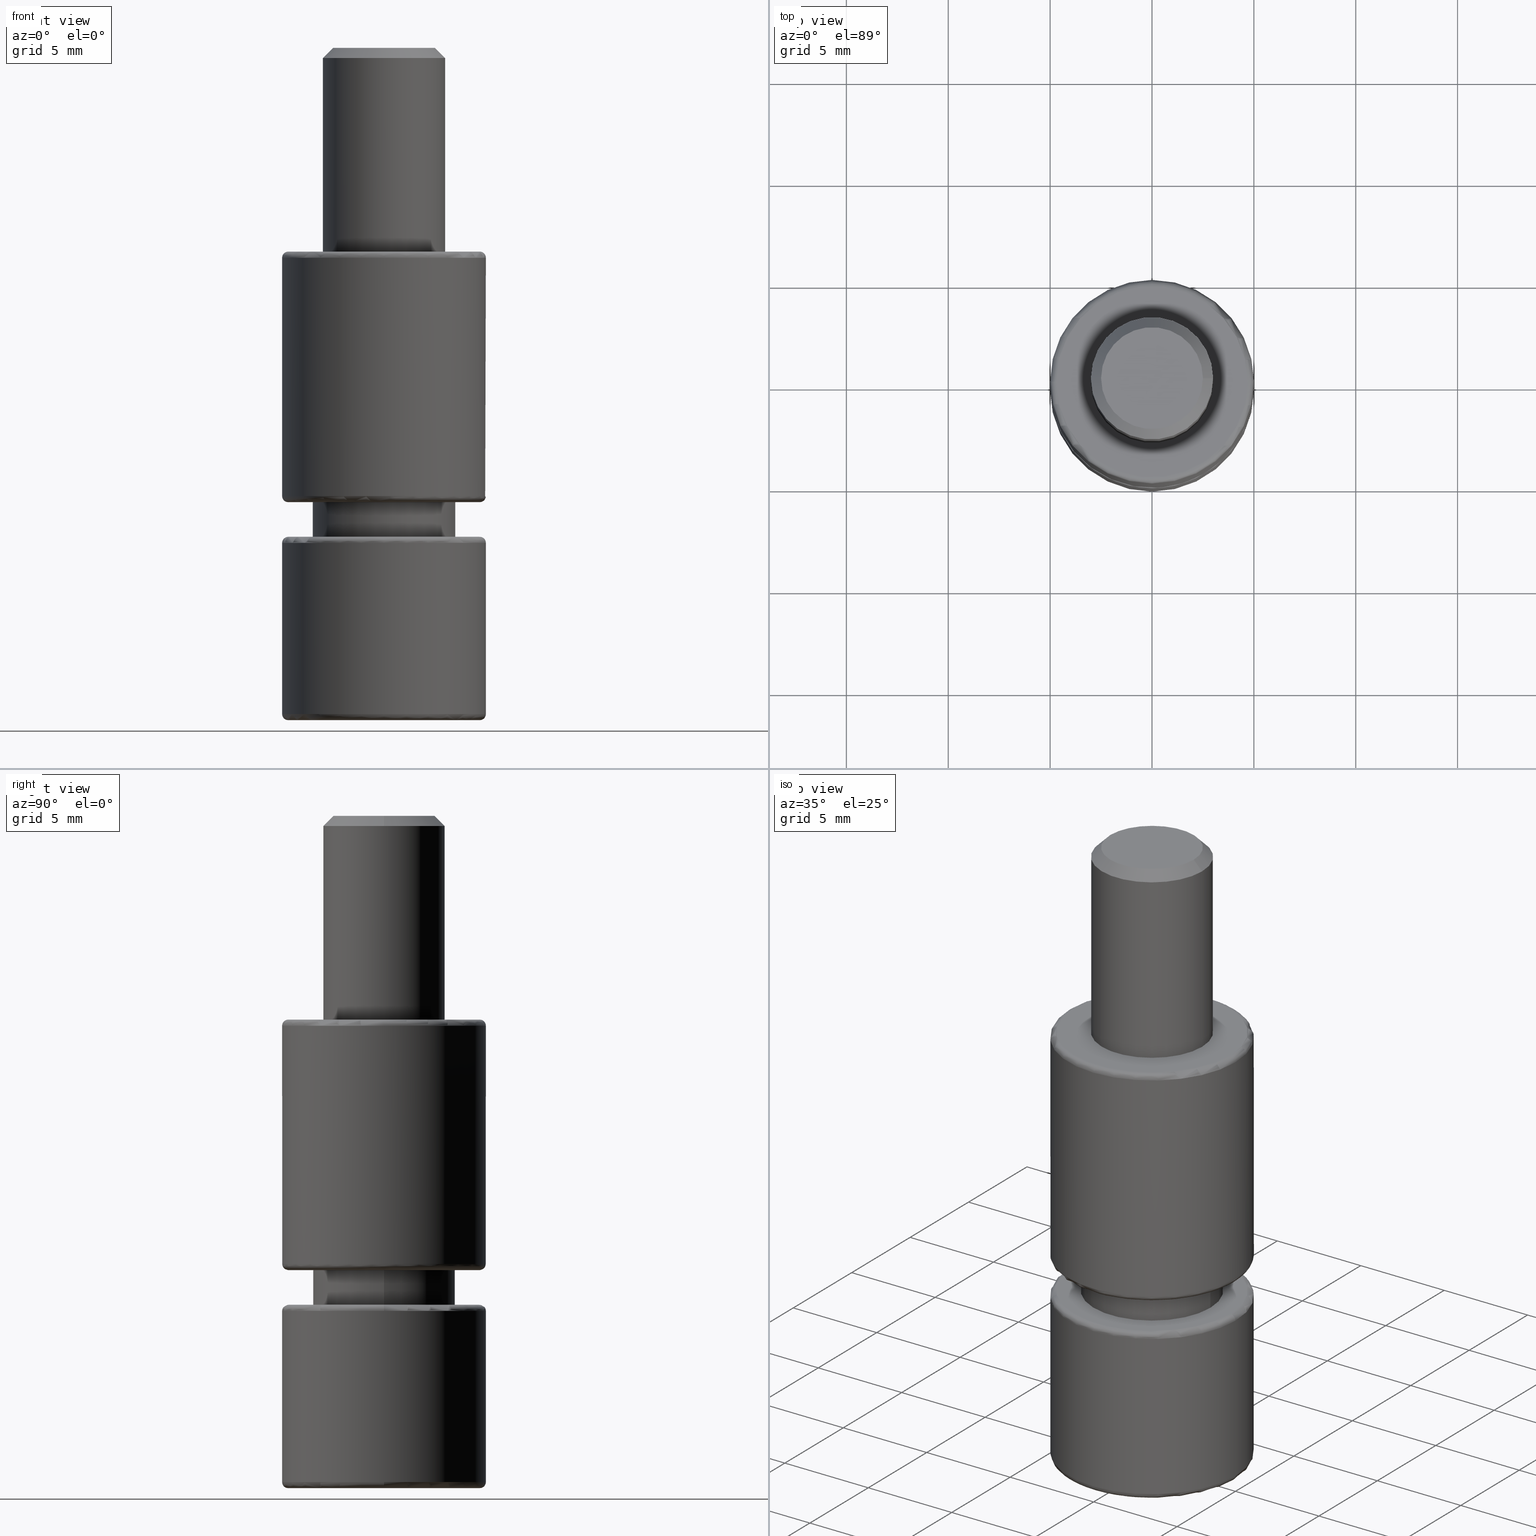
[diagram: canonical four-view strip — front | top / right | iso, engineering-drawing reading convention]
A machine part, canonical four-view strip (front | top / right | iso — engineering-drawing reading convention). The complete STEP part file that produces these views, byte-faithful:
ISO-10303-21;
HEADER;
/* Generated by software containing ST-Developer
 * from STEP Tools, Inc. (www.steptools.com) 
 */

FILE_DESCRIPTION(
/* description */ ('PERNO FILETTATO M6x10 TESTA H23 FERRO ZN'),
/* implementation_level */ '2;1');

FILE_NAME(
/* name */ 
'Q:\\Catalogo\\3_Profili e accessori MACAP\\Per Download Web e catalog
o artaceo\\ACCESSORI\\PAGINA 56\\DPEXX0000063-XT10204.stp',
/* time_stamp */ '2019-07-29T10:38:09+02:00',
/* author */ ('fzagni'),
/* organization */ (''),
/* preprocessor_version */ 'ST-DEVELOPER v17.2',
/* originating_system */ 'Autodesk Inventor 2019',
/* authorisation */ '');

FILE_SCHEMA (('AUTOMOTIVE_DESIGN { 1 0 10303 214 3 1 1 }'));
ENDSEC;

DATA;
#10=MECHANICAL_DESIGN_GEOMETRIC_PRESENTATION_REPRESENTATION('',(#13),#804);
#11=SHAPE_REPRESENTATION_RELATIONSHIP('SRR','None',#811,#12);
#12=ADVANCED_BREP_SHAPE_REPRESENTATION('',(#14),#803);
#13=STYLED_ITEM('',(#820),#14);
#14=MANIFOLD_SOLID_BREP('Solido1',#444);
#15=CONICAL_SURFACE('',#517,2.75,0.78539816339745);
#16=TOROIDAL_SURFACE('',#481,4.7,0.3);
#17=TOROIDAL_SURFACE('',#493,4.7,0.3);
#18=TOROIDAL_SURFACE('',#508,4.7,0.3);
#19=TOROIDAL_SURFACE('',#510,4.7,0.3);
#20=FACE_BOUND('',#99,.T.);
#21=FACE_BOUND('',#102,.T.);
#22=FACE_BOUND('',#106,.T.);
#23=FACE_BOUND('',#116,.T.);
#24=CIRCLE('',#480,4.7);
#25=CIRCLE('',#482,5.);
#26=CIRCLE('',#483,0.3);
#27=CIRCLE('',#484,4.7);
#28=CIRCLE('',#485,4.7);
#29=CIRCLE('',#486,5.);
#30=CIRCLE('',#488,3.5);
#31=CIRCLE('',#489,3.5);
#32=CIRCLE('',#491,5.);
#33=CIRCLE('',#492,5.);
#34=CIRCLE('',#494,5.);
#35=CIRCLE('',#495,0.3);
#36=CIRCLE('',#496,4.7);
#37=CIRCLE('',#498,3.5);
#38=CIRCLE('',#499,3.5);
#39=CIRCLE('',#501,5.);
#40=CIRCLE('',#502,5.);
#41=CIRCLE('',#509,0.3);
#42=CIRCLE('',#511,4.7);
#43=CIRCLE('',#512,0.3);
#44=CIRCLE('',#513,4.7);
#45=CIRCLE('',#515,3.);
#46=CIRCLE('',#516,3.);
#47=CIRCLE('',#518,2.5);
#48=CIRCLE('',#519,3.);
#49=CIRCLE('',#520,3.);
#50=PLANE('',#476);
#51=PLANE('',#477);
#52=PLANE('',#478);
#53=PLANE('',#479);
#54=PLANE('',#487);
#55=PLANE('',#497);
#56=PLANE('',#504);
#57=PLANE('',#505);
#58=PLANE('',#506);
#59=PLANE('',#507);
#60=PLANE('',#514);
#61=PLANE('',#522);
#62=FACE_OUTER_BOUND('',#89,.T.);
#63=FACE_OUTER_BOUND('',#90,.T.);
#64=FACE_OUTER_BOUND('',#91,.T.);
#65=FACE_OUTER_BOUND('',#92,.T.);
#66=FACE_OUTER_BOUND('',#93,.T.);
#67=FACE_OUTER_BOUND('',#94,.T.);
#68=FACE_OUTER_BOUND('',#95,.T.);
#69=FACE_OUTER_BOUND('',#96,.T.);
#70=FACE_OUTER_BOUND('',#97,.T.);
#71=FACE_OUTER_BOUND('',#98,.T.);
#72=FACE_OUTER_BOUND('',#100,.T.);
#73=FACE_OUTER_BOUND('',#101,.T.);
#74=FACE_OUTER_BOUND('',#103,.T.);
#75=FACE_OUTER_BOUND('',#104,.T.);
#76=FACE_OUTER_BOUND('',#105,.T.);
#77=FACE_OUTER_BOUND('',#107,.T.);
#78=FACE_OUTER_BOUND('',#108,.T.);
#79=FACE_OUTER_BOUND('',#109,.T.);
#80=FACE_OUTER_BOUND('',#110,.T.);
#81=FACE_OUTER_BOUND('',#111,.T.);
#82=FACE_OUTER_BOUND('',#112,.T.);
#83=FACE_OUTER_BOUND('',#113,.T.);
#84=FACE_OUTER_BOUND('',#114,.T.);
#85=FACE_OUTER_BOUND('',#115,.T.);
#86=FACE_OUTER_BOUND('',#117,.T.);
#87=FACE_OUTER_BOUND('',#118,.T.);
#88=FACE_OUTER_BOUND('',#119,.T.);
#89=EDGE_LOOP('',(#285,#286,#287,#288));
#90=EDGE_LOOP('',(#289,#290,#291,#292));
#91=EDGE_LOOP('',(#293,#294,#295,#296));
#92=EDGE_LOOP('',(#297,#298,#299,#300));
#93=EDGE_LOOP('',(#301,#302,#303,#304));
#94=EDGE_LOOP('',(#305,#306,#307,#308));
#95=EDGE_LOOP('',(#309,#310,#311,#312));
#96=EDGE_LOOP('',(#313,#314,#315,#316));
#97=EDGE_LOOP('',(#317,#318,#319,#320));
#98=EDGE_LOOP('',(#321));
#99=EDGE_LOOP('',(#322,#323,#324,#325,#326,#327));
#100=EDGE_LOOP('',(#328,#329,#330,#331,#332,#333));
#101=EDGE_LOOP('',(#334,#335));
#102=EDGE_LOOP('',(#336,#337));
#103=EDGE_LOOP('',(#338,#339,#340,#341,#342,#343));
#104=EDGE_LOOP('',(#344,#345,#346,#347));
#105=EDGE_LOOP('',(#348));
#106=EDGE_LOOP('',(#349,#350));
#107=EDGE_LOOP('',(#351,#352,#353,#354,#355));
#108=EDGE_LOOP('',(#356,#357,#358,#359,#360,#361));
#109=EDGE_LOOP('',(#362,#363,#364,#365));
#110=EDGE_LOOP('',(#366,#367,#368,#369));
#111=EDGE_LOOP('',(#370,#371,#372,#373));
#112=EDGE_LOOP('',(#374,#375,#376,#377,#378,#379));
#113=EDGE_LOOP('',(#380,#381,#382,#383,#384));
#114=EDGE_LOOP('',(#385,#386,#387,#388,#389,#390));
#115=EDGE_LOOP('',(#391,#392));
#116=EDGE_LOOP('',(#393,#394));
#117=EDGE_LOOP('',(#395,#396,#397,#398,#399));
#118=EDGE_LOOP('',(#400,#401,#402,#403,#404,#405));
#119=EDGE_LOOP('',(#406));
#120=ELLIPSE('',#465,0.346410161513776,0.3);
#121=ELLIPSE('',#466,0.346410161513775,0.3);
#122=ELLIPSE('',#468,0.346410161513775,0.3);
#123=ELLIPSE('',#470,0.346410161513776,0.3);
#124=ELLIPSE('',#472,0.346410161513775,0.3);
#125=ELLIPSE('',#474,0.346410161513776,0.3);
#126=LINE('',#676,#155);
#127=LINE('',#680,#156);
#128=LINE('',#684,#157);
#129=LINE('',#687,#158);
#130=LINE('',#690,#159);
#131=LINE('',#693,#160);
#132=LINE('',#696,#161);
#133=LINE('',#699,#162);
#134=LINE('',#702,#163);
#135=LINE('',#705,#164);
#136=LINE('',#707,#165);
#137=LINE('',#708,#166);
#138=LINE('',#711,#167);
#139=LINE('',#713,#168);
#140=LINE('',#714,#169);
#141=LINE('',#717,#170);
#142=LINE('',#718,#171);
#143=LINE('',#721,#172);
#144=LINE('',#722,#173);
#145=LINE('',#743,#174);
#146=LINE('',#763,#175);
#147=LINE('',#765,#176);
#148=LINE('',#768,#177);
#149=LINE('',#769,#178);
#150=LINE('',#772,#179);
#151=LINE('',#773,#180);
#152=LINE('',#775,#181);
#153=LINE('',#794,#182);
#154=LINE('',#799,#183);
#155=VECTOR('',#527,10.);
#156=VECTOR('',#530,10.);
#157=VECTOR('',#535,10.);
#158=VECTOR('',#538,10.);
#159=VECTOR('',#541,10.);
#160=VECTOR('',#544,10.);
#161=VECTOR('',#547,10.);
#162=VECTOR('',#550,10.);
#163=VECTOR('',#553,10.);
#164=VECTOR('',#556,10.);
#165=VECTOR('',#559,10.);
#166=VECTOR('',#560,10.);
#167=VECTOR('',#563,10.);
#168=VECTOR('',#564,10.);
#169=VECTOR('',#565,10.);
#170=VECTOR('',#568,10.);
#171=VECTOR('',#569,10.);
#172=VECTOR('',#572,10.);
#173=VECTOR('',#573,10.);
#174=VECTOR('',#598,5.);
#175=VECTOR('',#623,5.);
#176=VECTOR('',#626,3.5);
#177=VECTOR('',#629,10.);
#178=VECTOR('',#630,10.);
#179=VECTOR('',#633,10.);
#180=VECTOR('',#634,10.);
#181=VECTOR('',#637,10.);
#182=VECTOR('',#662,2.75);
#183=VECTOR('',#669,3.);
#184=VERTEX_POINT('',#674);
#185=VERTEX_POINT('',#675);
#186=VERTEX_POINT('',#677);
#187=VERTEX_POINT('',#679);
#188=VERTEX_POINT('',#683);
#189=VERTEX_POINT('',#685);
#190=VERTEX_POINT('',#689);
#191=VERTEX_POINT('',#691);
#192=VERTEX_POINT('',#695);
#193=VERTEX_POINT('',#697);
#194=VERTEX_POINT('',#701);
#195=VERTEX_POINT('',#703);
#196=VERTEX_POINT('',#710);
#197=VERTEX_POINT('',#712);
#198=VERTEX_POINT('',#716);
#199=VERTEX_POINT('',#720);
#200=VERTEX_POINT('',#724);
#201=VERTEX_POINT('',#727);
#202=VERTEX_POINT('',#728);
#203=VERTEX_POINT('',#730);
#204=VERTEX_POINT('',#732);
#205=VERTEX_POINT('',#737);
#206=VERTEX_POINT('',#738);
#207=VERTEX_POINT('',#742);
#208=VERTEX_POINT('',#744);
#209=VERTEX_POINT('',#748);
#210=VERTEX_POINT('',#750);
#211=VERTEX_POINT('',#754);
#212=VERTEX_POINT('',#755);
#213=VERTEX_POINT('',#759);
#214=VERTEX_POINT('',#760);
#215=VERTEX_POINT('',#767);
#216=VERTEX_POINT('',#771);
#217=VERTEX_POINT('',#780);
#218=VERTEX_POINT('',#781);
#219=VERTEX_POINT('',#786);
#220=VERTEX_POINT('',#787);
#221=VERTEX_POINT('',#791);
#222=VERTEX_POINT('',#793);
#223=VERTEX_POINT('',#795);
#224=EDGE_CURVE('',#184,#185,#126,.T.);
#225=EDGE_CURVE('',#185,#186,#120,.T.);
#226=EDGE_CURVE('',#186,#187,#127,.T.);
#227=EDGE_CURVE('',#184,#187,#121,.T.);
#228=EDGE_CURVE('',#185,#188,#128,.T.);
#229=EDGE_CURVE('',#188,#189,#122,.T.);
#230=EDGE_CURVE('',#189,#186,#129,.T.);
#231=EDGE_CURVE('',#187,#190,#130,.T.);
#232=EDGE_CURVE('',#190,#191,#123,.T.);
#233=EDGE_CURVE('',#191,#184,#131,.T.);
#234=EDGE_CURVE('',#188,#192,#132,.T.);
#235=EDGE_CURVE('',#192,#193,#124,.T.);
#236=EDGE_CURVE('',#193,#189,#133,.T.);
#237=EDGE_CURVE('',#192,#194,#134,.T.);
#238=EDGE_CURVE('',#194,#195,#125,.T.);
#239=EDGE_CURVE('',#195,#193,#135,.T.);
#240=EDGE_CURVE('',#190,#195,#136,.T.);
#241=EDGE_CURVE('',#194,#191,#137,.T.);
#242=EDGE_CURVE('',#190,#196,#138,.T.);
#243=EDGE_CURVE('',#196,#197,#139,.T.);
#244=EDGE_CURVE('',#195,#197,#140,.T.);
#245=EDGE_CURVE('',#187,#198,#141,.T.);
#246=EDGE_CURVE('',#198,#196,#142,.T.);
#247=EDGE_CURVE('',#186,#199,#143,.T.);
#248=EDGE_CURVE('',#199,#198,#144,.T.);
#249=EDGE_CURVE('',#200,#200,#24,.T.);
#250=EDGE_CURVE('',#201,#202,#25,.T.);
#251=EDGE_CURVE('',#202,#203,#26,.T.);
#252=EDGE_CURVE('',#203,#204,#27,.T.);
#253=EDGE_CURVE('',#204,#203,#28,.T.);
#254=EDGE_CURVE('',#202,#201,#29,.T.);
#255=EDGE_CURVE('',#205,#206,#30,.T.);
#256=EDGE_CURVE('',#206,#205,#31,.T.);
#257=EDGE_CURVE('',#201,#207,#145,.T.);
#258=EDGE_CURVE('',#208,#207,#32,.T.);
#259=EDGE_CURVE('',#207,#208,#33,.T.);
#260=EDGE_CURVE('',#209,#209,#34,.T.);
#261=EDGE_CURVE('',#209,#210,#35,.T.);
#262=EDGE_CURVE('',#210,#210,#36,.T.);
#263=EDGE_CURVE('',#211,#212,#37,.T.);
#264=EDGE_CURVE('',#212,#211,#38,.T.);
#265=EDGE_CURVE('',#213,#214,#39,.T.);
#266=EDGE_CURVE('',#214,#213,#40,.T.);
#267=EDGE_CURVE('',#214,#209,#146,.T.);
#268=EDGE_CURVE('',#206,#212,#147,.T.);
#269=EDGE_CURVE('',#189,#215,#148,.T.);
#270=EDGE_CURVE('',#215,#199,#149,.T.);
#271=EDGE_CURVE('',#193,#216,#150,.T.);
#272=EDGE_CURVE('',#216,#215,#151,.T.);
#273=EDGE_CURVE('',#197,#216,#152,.T.);
#274=EDGE_CURVE('',#200,#208,#41,.T.);
#275=EDGE_CURVE('',#217,#218,#42,.T.);
#276=EDGE_CURVE('',#218,#214,#43,.T.);
#277=EDGE_CURVE('',#218,#217,#44,.T.);
#278=EDGE_CURVE('',#219,#220,#45,.T.);
#279=EDGE_CURVE('',#220,#219,#46,.T.);
#280=EDGE_CURVE('',#221,#221,#47,.T.);
#281=EDGE_CURVE('',#221,#222,#153,.T.);
#282=EDGE_CURVE('',#222,#223,#48,.T.);
#283=EDGE_CURVE('',#223,#222,#49,.T.);
#284=EDGE_CURVE('',#223,#220,#154,.T.);
#285=ORIENTED_EDGE('',*,*,#224,.T.);
#286=ORIENTED_EDGE('',*,*,#225,.T.);
#287=ORIENTED_EDGE('',*,*,#226,.T.);
#288=ORIENTED_EDGE('',*,*,#227,.F.);
#289=ORIENTED_EDGE('',*,*,#228,.T.);
#290=ORIENTED_EDGE('',*,*,#229,.T.);
#291=ORIENTED_EDGE('',*,*,#230,.T.);
#292=ORIENTED_EDGE('',*,*,#225,.F.);
#293=ORIENTED_EDGE('',*,*,#231,.T.);
#294=ORIENTED_EDGE('',*,*,#232,.T.);
#295=ORIENTED_EDGE('',*,*,#233,.T.);
#296=ORIENTED_EDGE('',*,*,#227,.T.);
#297=ORIENTED_EDGE('',*,*,#234,.T.);
#298=ORIENTED_EDGE('',*,*,#235,.T.);
#299=ORIENTED_EDGE('',*,*,#236,.T.);
#300=ORIENTED_EDGE('',*,*,#229,.F.);
#301=ORIENTED_EDGE('',*,*,#237,.T.);
#302=ORIENTED_EDGE('',*,*,#238,.T.);
#303=ORIENTED_EDGE('',*,*,#239,.T.);
#304=ORIENTED_EDGE('',*,*,#235,.F.);
#305=ORIENTED_EDGE('',*,*,#240,.T.);
#306=ORIENTED_EDGE('',*,*,#238,.F.);
#307=ORIENTED_EDGE('',*,*,#241,.T.);
#308=ORIENTED_EDGE('',*,*,#232,.F.);
#309=ORIENTED_EDGE('',*,*,#240,.F.);
#310=ORIENTED_EDGE('',*,*,#242,.T.);
#311=ORIENTED_EDGE('',*,*,#243,.T.);
#312=ORIENTED_EDGE('',*,*,#244,.F.);
#313=ORIENTED_EDGE('',*,*,#231,.F.);
#314=ORIENTED_EDGE('',*,*,#245,.T.);
#315=ORIENTED_EDGE('',*,*,#246,.T.);
#316=ORIENTED_EDGE('',*,*,#242,.F.);
#317=ORIENTED_EDGE('',*,*,#226,.F.);
#318=ORIENTED_EDGE('',*,*,#247,.T.);
#319=ORIENTED_EDGE('',*,*,#248,.T.);
#320=ORIENTED_EDGE('',*,*,#245,.F.);
#321=ORIENTED_EDGE('',*,*,#249,.F.);
#322=ORIENTED_EDGE('',*,*,#224,.F.);
#323=ORIENTED_EDGE('',*,*,#233,.F.);
#324=ORIENTED_EDGE('',*,*,#241,.F.);
#325=ORIENTED_EDGE('',*,*,#237,.F.);
#326=ORIENTED_EDGE('',*,*,#234,.F.);
#327=ORIENTED_EDGE('',*,*,#228,.F.);
#328=ORIENTED_EDGE('',*,*,#250,.T.);
#329=ORIENTED_EDGE('',*,*,#251,.T.);
#330=ORIENTED_EDGE('',*,*,#252,.T.);
#331=ORIENTED_EDGE('',*,*,#253,.T.);
#332=ORIENTED_EDGE('',*,*,#251,.F.);
#333=ORIENTED_EDGE('',*,*,#254,.T.);
#334=ORIENTED_EDGE('',*,*,#253,.F.);
#335=ORIENTED_EDGE('',*,*,#252,.F.);
#336=ORIENTED_EDGE('',*,*,#255,.F.);
#337=ORIENTED_EDGE('',*,*,#256,.F.);
#338=ORIENTED_EDGE('',*,*,#250,.F.);
#339=ORIENTED_EDGE('',*,*,#257,.T.);
#340=ORIENTED_EDGE('',*,*,#258,.F.);
#341=ORIENTED_EDGE('',*,*,#259,.F.);
#342=ORIENTED_EDGE('',*,*,#257,.F.);
#343=ORIENTED_EDGE('',*,*,#254,.F.);
#344=ORIENTED_EDGE('',*,*,#260,.T.);
#345=ORIENTED_EDGE('',*,*,#261,.T.);
#346=ORIENTED_EDGE('',*,*,#262,.T.);
#347=ORIENTED_EDGE('',*,*,#261,.F.);
#348=ORIENTED_EDGE('',*,*,#262,.F.);
#349=ORIENTED_EDGE('',*,*,#263,.T.);
#350=ORIENTED_EDGE('',*,*,#264,.T.);
#351=ORIENTED_EDGE('',*,*,#265,.F.);
#352=ORIENTED_EDGE('',*,*,#266,.F.);
#353=ORIENTED_EDGE('',*,*,#267,.T.);
#354=ORIENTED_EDGE('',*,*,#260,.F.);
#355=ORIENTED_EDGE('',*,*,#267,.F.);
#356=ORIENTED_EDGE('',*,*,#255,.T.);
#357=ORIENTED_EDGE('',*,*,#268,.T.);
#358=ORIENTED_EDGE('',*,*,#263,.F.);
#359=ORIENTED_EDGE('',*,*,#264,.F.);
#360=ORIENTED_EDGE('',*,*,#268,.F.);
#361=ORIENTED_EDGE('',*,*,#256,.T.);
#362=ORIENTED_EDGE('',*,*,#230,.F.);
#363=ORIENTED_EDGE('',*,*,#269,.T.);
#364=ORIENTED_EDGE('',*,*,#270,.T.);
#365=ORIENTED_EDGE('',*,*,#247,.F.);
#366=ORIENTED_EDGE('',*,*,#236,.F.);
#367=ORIENTED_EDGE('',*,*,#271,.T.);
#368=ORIENTED_EDGE('',*,*,#272,.T.);
#369=ORIENTED_EDGE('',*,*,#269,.F.);
#370=ORIENTED_EDGE('',*,*,#239,.F.);
#371=ORIENTED_EDGE('',*,*,#244,.T.);
#372=ORIENTED_EDGE('',*,*,#273,.T.);
#373=ORIENTED_EDGE('',*,*,#271,.F.);
#374=ORIENTED_EDGE('',*,*,#243,.F.);
#375=ORIENTED_EDGE('',*,*,#246,.F.);
#376=ORIENTED_EDGE('',*,*,#248,.F.);
#377=ORIENTED_EDGE('',*,*,#270,.F.);
#378=ORIENTED_EDGE('',*,*,#272,.F.);
#379=ORIENTED_EDGE('',*,*,#273,.F.);
#380=ORIENTED_EDGE('',*,*,#249,.T.);
#381=ORIENTED_EDGE('',*,*,#274,.T.);
#382=ORIENTED_EDGE('',*,*,#258,.T.);
#383=ORIENTED_EDGE('',*,*,#259,.T.);
#384=ORIENTED_EDGE('',*,*,#274,.F.);
#385=ORIENTED_EDGE('',*,*,#275,.T.);
#386=ORIENTED_EDGE('',*,*,#276,.T.);
#387=ORIENTED_EDGE('',*,*,#266,.T.);
#388=ORIENTED_EDGE('',*,*,#265,.T.);
#389=ORIENTED_EDGE('',*,*,#276,.F.);
#390=ORIENTED_EDGE('',*,*,#277,.T.);
#391=ORIENTED_EDGE('',*,*,#275,.F.);
#392=ORIENTED_EDGE('',*,*,#277,.F.);
#393=ORIENTED_EDGE('',*,*,#278,.T.);
#394=ORIENTED_EDGE('',*,*,#279,.T.);
#395=ORIENTED_EDGE('',*,*,#280,.T.);
#396=ORIENTED_EDGE('',*,*,#281,.T.);
#397=ORIENTED_EDGE('',*,*,#282,.T.);
#398=ORIENTED_EDGE('',*,*,#283,.T.);
#399=ORIENTED_EDGE('',*,*,#281,.F.);
#400=ORIENTED_EDGE('',*,*,#282,.F.);
#401=ORIENTED_EDGE('',*,*,#283,.F.);
#402=ORIENTED_EDGE('',*,*,#284,.T.);
#403=ORIENTED_EDGE('',*,*,#278,.F.);
#404=ORIENTED_EDGE('',*,*,#279,.F.);
#405=ORIENTED_EDGE('',*,*,#284,.F.);
#406=ORIENTED_EDGE('',*,*,#280,.F.);
#407=CYLINDRICAL_SURFACE('',#464,0.3);
#408=CYLINDRICAL_SURFACE('',#467,0.3);
#409=CYLINDRICAL_SURFACE('',#469,0.3);
#410=CYLINDRICAL_SURFACE('',#471,0.3);
#411=CYLINDRICAL_SURFACE('',#473,0.3);
#412=CYLINDRICAL_SURFACE('',#475,0.3);
#413=CYLINDRICAL_SURFACE('',#490,5.);
#414=CYLINDRICAL_SURFACE('',#500,5.);
#415=CYLINDRICAL_SURFACE('',#503,3.5);
#416=CYLINDRICAL_SURFACE('',#521,3.);
#417=ADVANCED_FACE('',(#62),#407,.T.);
#418=ADVANCED_FACE('',(#63),#408,.T.);
#419=ADVANCED_FACE('',(#64),#409,.T.);
#420=ADVANCED_FACE('',(#65),#410,.T.);
#421=ADVANCED_FACE('',(#66),#411,.T.);
#422=ADVANCED_FACE('',(#67),#412,.T.);
#423=ADVANCED_FACE('',(#68),#50,.F.);
#424=ADVANCED_FACE('',(#69),#51,.F.);
#425=ADVANCED_FACE('',(#70),#52,.F.);
#426=ADVANCED_FACE('',(#71,#20),#53,.F.);
#427=ADVANCED_FACE('',(#72),#16,.T.);
#428=ADVANCED_FACE('',(#73,#21),#54,.F.);
#429=ADVANCED_FACE('',(#74),#413,.T.);
#430=ADVANCED_FACE('',(#75),#17,.T.);
#431=ADVANCED_FACE('',(#76,#22),#55,.F.);
#432=ADVANCED_FACE('',(#77),#414,.T.);
#433=ADVANCED_FACE('',(#78),#415,.T.);
#434=ADVANCED_FACE('',(#79),#56,.F.);
#435=ADVANCED_FACE('',(#80),#57,.F.);
#436=ADVANCED_FACE('',(#81),#58,.F.);
#437=ADVANCED_FACE('',(#82),#59,.F.);
#438=ADVANCED_FACE('',(#83),#18,.T.);
#439=ADVANCED_FACE('',(#84),#19,.T.);
#440=ADVANCED_FACE('',(#85,#23),#60,.T.);
#441=ADVANCED_FACE('',(#86),#15,.T.);
#442=ADVANCED_FACE('',(#87),#416,.T.);
#443=ADVANCED_FACE('',(#88),#61,.T.);
#444=CLOSED_SHELL('',(#417,#418,#419,#420,#421,#422,#423,#424,#425,#426,
#427,#428,#429,#430,#431,#432,#433,#434,#435,#436,#437,#438,#439,#440,#441,
#442,#443));
#445=DERIVED_UNIT_ELEMENT(#447,1.);
#446=DERIVED_UNIT_ELEMENT(#806,3.);
#447=(
MASS_UNIT()
NAMED_UNIT(*)
SI_UNIT($,.GRAM.)
);
#448=DERIVED_UNIT((#445,#446));
#449=MEASURE_REPRESENTATION_ITEM('density measure',
POSITIVE_RATIO_MEASURE(7.85),#448);
#450=PROPERTY_DEFINITION_REPRESENTATION(#455,#452);
#451=PROPERTY_DEFINITION_REPRESENTATION(#456,#453);
#452=REPRESENTATION('material name',(#454),#803);
#453=REPRESENTATION('density',(#449),#803);
#454=DESCRIPTIVE_REPRESENTATION_ITEM('Acciaio S355JR','Acciaio S355JR');
#455=PROPERTY_DEFINITION('material property','material name',#813);
#456=PROPERTY_DEFINITION('material property','density of part',#813);
#457=DATE_TIME_ROLE('creation_date');
#458=APPLIED_DATE_AND_TIME_ASSIGNMENT(#459,#457,(#813));
#459=DATE_AND_TIME(#460,#461);
#460=CALENDAR_DATE(2012,28,10);
#461=LOCAL_TIME(23,0,0.,#462);
#462=COORDINATED_UNIVERSAL_TIME_OFFSET(0,0,.BEHIND.);
#463=AXIS2_PLACEMENT_3D('placement',#672,#523,#524);
#464=AXIS2_PLACEMENT_3D('',#673,#525,#526);
#465=AXIS2_PLACEMENT_3D('',#678,#528,#529);
#466=AXIS2_PLACEMENT_3D('',#681,#531,#532);
#467=AXIS2_PLACEMENT_3D('',#682,#533,#534);
#468=AXIS2_PLACEMENT_3D('',#686,#536,#537);
#469=AXIS2_PLACEMENT_3D('',#688,#539,#540);
#470=AXIS2_PLACEMENT_3D('',#692,#542,#543);
#471=AXIS2_PLACEMENT_3D('',#694,#545,#546);
#472=AXIS2_PLACEMENT_3D('',#698,#548,#549);
#473=AXIS2_PLACEMENT_3D('',#700,#551,#552);
#474=AXIS2_PLACEMENT_3D('',#704,#554,#555);
#475=AXIS2_PLACEMENT_3D('',#706,#557,#558);
#476=AXIS2_PLACEMENT_3D('',#709,#561,#562);
#477=AXIS2_PLACEMENT_3D('',#715,#566,#567);
#478=AXIS2_PLACEMENT_3D('',#719,#570,#571);
#479=AXIS2_PLACEMENT_3D('',#723,#574,#575);
#480=AXIS2_PLACEMENT_3D('',#725,#576,#577);
#481=AXIS2_PLACEMENT_3D('',#726,#578,#579);
#482=AXIS2_PLACEMENT_3D('',#729,#580,#581);
#483=AXIS2_PLACEMENT_3D('',#731,#582,#583);
#484=AXIS2_PLACEMENT_3D('',#733,#584,#585);
#485=AXIS2_PLACEMENT_3D('',#734,#586,#587);
#486=AXIS2_PLACEMENT_3D('',#735,#588,#589);
#487=AXIS2_PLACEMENT_3D('',#736,#590,#591);
#488=AXIS2_PLACEMENT_3D('',#739,#592,#593);
#489=AXIS2_PLACEMENT_3D('',#740,#594,#595);
#490=AXIS2_PLACEMENT_3D('',#741,#596,#597);
#491=AXIS2_PLACEMENT_3D('',#745,#599,#600);
#492=AXIS2_PLACEMENT_3D('',#746,#601,#602);
#493=AXIS2_PLACEMENT_3D('',#747,#603,#604);
#494=AXIS2_PLACEMENT_3D('',#749,#605,#606);
#495=AXIS2_PLACEMENT_3D('',#751,#607,#608);
#496=AXIS2_PLACEMENT_3D('',#752,#609,#610);
#497=AXIS2_PLACEMENT_3D('',#753,#611,#612);
#498=AXIS2_PLACEMENT_3D('',#756,#613,#614);
#499=AXIS2_PLACEMENT_3D('',#757,#615,#616);
#500=AXIS2_PLACEMENT_3D('',#758,#617,#618);
#501=AXIS2_PLACEMENT_3D('',#761,#619,#620);
#502=AXIS2_PLACEMENT_3D('',#762,#621,#622);
#503=AXIS2_PLACEMENT_3D('',#764,#624,#625);
#504=AXIS2_PLACEMENT_3D('',#766,#627,#628);
#505=AXIS2_PLACEMENT_3D('',#770,#631,#632);
#506=AXIS2_PLACEMENT_3D('',#774,#635,#636);
#507=AXIS2_PLACEMENT_3D('',#776,#638,#639);
#508=AXIS2_PLACEMENT_3D('',#777,#640,#641);
#509=AXIS2_PLACEMENT_3D('',#778,#642,#643);
#510=AXIS2_PLACEMENT_3D('',#779,#644,#645);
#511=AXIS2_PLACEMENT_3D('',#782,#646,#647);
#512=AXIS2_PLACEMENT_3D('',#783,#648,#649);
#513=AXIS2_PLACEMENT_3D('',#784,#650,#651);
#514=AXIS2_PLACEMENT_3D('',#785,#652,#653);
#515=AXIS2_PLACEMENT_3D('',#788,#654,#655);
#516=AXIS2_PLACEMENT_3D('',#789,#656,#657);
#517=AXIS2_PLACEMENT_3D('',#790,#658,#659);
#518=AXIS2_PLACEMENT_3D('',#792,#660,#661);
#519=AXIS2_PLACEMENT_3D('',#796,#663,#664);
#520=AXIS2_PLACEMENT_3D('',#797,#665,#666);
#521=AXIS2_PLACEMENT_3D('',#798,#667,#668);
#522=AXIS2_PLACEMENT_3D('',#800,#670,#671);
#523=DIRECTION('axis',(0.,0.,1.));
#524=DIRECTION('refdir',(1.,0.,0.));
#525=DIRECTION('center_axis',(-1.,-1.60246890531964E-16,0.));
#526=DIRECTION('ref_axis',(0.,-0.707106781186545,-0.70710678118655));
#527=DIRECTION('',(1.,1.60246890531964E-16,0.));
#528=DIRECTION('center_axis',(-0.866025403784438,0.500000000000002,-1.60246890531963E-15));
#529=DIRECTION('ref_axis',(0.500000000000002,0.866025403784438,-2.77555756156287E-15));
#530=DIRECTION('',(-1.,-1.60246890531964E-16,0.));
#531=DIRECTION('center_axis',(-0.866025403784438,-0.500000000000001,-8.01234452659817E-16));
#532=DIRECTION('ref_axis',(-0.500000000000001,0.866025403784438,-1.38777878078145E-15));
#533=DIRECTION('center_axis',(-0.5,0.866025403784438,0.));
#534=DIRECTION('ref_axis',(-0.612372435695794,-0.353553390593273,-0.707106781186549));
#535=DIRECTION('',(0.5,-0.866025403784438,0.));
#536=DIRECTION('center_axis',(-1.40596822971279E-15,1.,-1.38777878078144E-15));
#537=DIRECTION('ref_axis',(1.,1.40596822971279E-15,-2.40370335797946E-15));
#538=DIRECTION('',(-0.5,0.866025403784438,0.));
#539=DIRECTION('center_axis',(-0.5,-0.866025403784439,0.));
#540=DIRECTION('ref_axis',(0.612372435695792,-0.353553390593271,-0.707106781186551));
#541=DIRECTION('',(-0.5,-0.866025403784439,0.));
#542=DIRECTION('center_axis',(-1.60246890531964E-15,1.,9.25185853854296E-16));
#543=DIRECTION('ref_axis',(1.,1.60246890531964E-15,-1.60246890531963E-15));
#544=DIRECTION('',(0.5,0.866025403784439,0.));
#545=DIRECTION('center_axis',(0.5,0.866025403784439,0.));
#546=DIRECTION('ref_axis',(-0.612372435695792,0.353553390593273,-0.70710678118655));
#547=DIRECTION('',(-0.5,-0.866025403784439,0.));
#548=DIRECTION('center_axis',(0.866025403784438,0.500000000000001,0.));
#549=DIRECTION('ref_axis',(0.500000000000001,-0.866025403784438,0.));
#550=DIRECTION('',(0.5,0.866025403784439,0.));
#551=DIRECTION('center_axis',(1.,4.80740671595891E-16,0.));
#552=DIRECTION('ref_axis',(-6.54205191118237E-16,0.707106781186545,-0.70710678118655));
#553=DIRECTION('',(-1.,-4.80740671595891E-16,0.));
#554=DIRECTION('center_axis',(0.866025403784439,-0.5,0.));
#555=DIRECTION('ref_axis',(-0.5,-0.866025403784439,0.));
#556=DIRECTION('',(1.,4.80740671595891E-16,0.));
#557=DIRECTION('center_axis',(0.5,-0.866025403784439,0.));
#558=DIRECTION('ref_axis',(0.612372435695792,0.353553390593273,-0.70710678118655));
#559=DIRECTION('',(0.5,-0.866025403784439,0.));
#560=DIRECTION('',(-0.5,0.866025403784439,0.));
#561=DIRECTION('center_axis',(-0.866025403784439,-0.5,0.));
#562=DIRECTION('ref_axis',(0.5,-0.866025403784439,0.));
#563=DIRECTION('',(0.,0.,1.));
#564=DIRECTION('',(0.5,-0.866025403784439,0.));
#565=DIRECTION('',(0.,0.,1.));
#566=DIRECTION('center_axis',(-0.866025403784439,0.5,0.));
#567=DIRECTION('ref_axis',(-0.5,-0.866025403784439,0.));
#568=DIRECTION('',(0.,0.,1.));
#569=DIRECTION('',(-0.5,-0.866025403784439,0.));
#570=DIRECTION('center_axis',(-1.60246890531964E-16,1.,0.));
#571=DIRECTION('ref_axis',(-1.,-1.60246890531964E-16,0.));
#572=DIRECTION('',(0.,0.,1.));
#573=DIRECTION('',(-1.,-1.60246890531964E-16,0.));
#574=DIRECTION('center_axis',(0.,0.,1.));
#575=DIRECTION('ref_axis',(1.,0.,0.));
#576=DIRECTION('center_axis',(0.,0.,1.));
#577=DIRECTION('ref_axis',(-1.,1.22464679914735E-16,0.));
#578=DIRECTION('center_axis',(0.,0.,-1.));
#579=DIRECTION('ref_axis',(-1.,0.,0.));
#580=DIRECTION('center_axis',(0.,0.,1.));
#581=DIRECTION('ref_axis',(1.,0.,0.));
#582=DIRECTION('center_axis',(-1.22464679914735E-16,-1.,0.));
#583=DIRECTION('ref_axis',(1.,-1.22464679914735E-16,0.));
#584=DIRECTION('center_axis',(0.,0.,-1.));
#585=DIRECTION('ref_axis',(1.,0.,0.));
#586=DIRECTION('center_axis',(0.,0.,-1.));
#587=DIRECTION('ref_axis',(1.,0.,0.));
#588=DIRECTION('center_axis',(0.,0.,1.));
#589=DIRECTION('ref_axis',(1.,0.,0.));
#590=DIRECTION('center_axis',(0.,0.,-1.));
#591=DIRECTION('ref_axis',(-1.,0.,0.));
#592=DIRECTION('center_axis',(0.,0.,1.));
#593=DIRECTION('ref_axis',(1.,0.,0.));
#594=DIRECTION('center_axis',(0.,0.,1.));
#595=DIRECTION('ref_axis',(1.,0.,0.));
#596=DIRECTION('center_axis',(0.,0.,1.));
#597=DIRECTION('ref_axis',(1.,0.,0.));
#598=DIRECTION('',(0.,0.,-1.));
#599=DIRECTION('center_axis',(0.,0.,-1.));
#600=DIRECTION('ref_axis',(-1.,1.22464679914735E-16,0.));
#601=DIRECTION('center_axis',(0.,0.,-1.));
#602=DIRECTION('ref_axis',(-1.,1.22464679914735E-16,0.));
#603=DIRECTION('center_axis',(0.,0.,1.));
#604=DIRECTION('ref_axis',(1.,0.,0.));
#605=DIRECTION('center_axis',(0.,0.,-1.));
#606=DIRECTION('ref_axis',(1.,0.,0.));
#607=DIRECTION('center_axis',(1.22464679914735E-16,-1.,0.));
#608=DIRECTION('ref_axis',(-1.,-1.22464679914735E-16,0.));
#609=DIRECTION('center_axis',(0.,0.,1.));
#610=DIRECTION('ref_axis',(1.,0.,0.));
#611=DIRECTION('center_axis',(0.,0.,1.));
#612=DIRECTION('ref_axis',(1.,0.,0.));
#613=DIRECTION('center_axis',(0.,0.,1.));
#614=DIRECTION('ref_axis',(1.,0.,0.));
#615=DIRECTION('center_axis',(0.,0.,1.));
#616=DIRECTION('ref_axis',(1.,0.,0.));
#617=DIRECTION('center_axis',(0.,0.,1.));
#618=DIRECTION('ref_axis',(1.,0.,0.));
#619=DIRECTION('center_axis',(0.,0.,1.));
#620=DIRECTION('ref_axis',(-1.,1.22464679914735E-16,0.));
#621=DIRECTION('center_axis',(0.,0.,1.));
#622=DIRECTION('ref_axis',(-1.,1.22464679914735E-16,0.));
#623=DIRECTION('',(0.,0.,-1.));
#624=DIRECTION('center_axis',(0.,0.,1.));
#625=DIRECTION('ref_axis',(-1.,0.,0.));
#626=DIRECTION('',(0.,0.,1.));
#627=DIRECTION('center_axis',(0.866025403784438,0.5,0.));
#628=DIRECTION('ref_axis',(-0.5,0.866025403784438,0.));
#629=DIRECTION('',(0.,0.,1.));
#630=DIRECTION('',(-0.5,0.866025403784438,0.));
#631=DIRECTION('center_axis',(0.866025403784439,-0.5,0.));
#632=DIRECTION('ref_axis',(0.5,0.866025403784439,0.));
#633=DIRECTION('',(0.,0.,1.));
#634=DIRECTION('',(0.5,0.866025403784439,0.));
#635=DIRECTION('center_axis',(4.80740671595891E-16,-1.,0.));
#636=DIRECTION('ref_axis',(1.,4.80740671595891E-16,0.));
#637=DIRECTION('',(1.,4.80740671595891E-16,0.));
#638=DIRECTION('center_axis',(0.,0.,1.));
#639=DIRECTION('ref_axis',(1.,0.,0.));
#640=DIRECTION('center_axis',(0.,0.,-1.));
#641=DIRECTION('ref_axis',(-1.,0.,0.));
#642=DIRECTION('center_axis',(-1.22464679914735E-16,-1.,0.));
#643=DIRECTION('ref_axis',(1.,-1.22464679914735E-16,0.));
#644=DIRECTION('center_axis',(0.,0.,1.));
#645=DIRECTION('ref_axis',(1.,0.,0.));
#646=DIRECTION('center_axis',(0.,0.,-1.));
#647=DIRECTION('ref_axis',(-1.,1.22464679914735E-16,0.));
#648=DIRECTION('center_axis',(1.22464679914735E-16,-1.,0.));
#649=DIRECTION('ref_axis',(-1.,-1.22464679914735E-16,0.));
#650=DIRECTION('center_axis',(0.,0.,-1.));
#651=DIRECTION('ref_axis',(-1.,1.22464679914735E-16,0.));
#652=DIRECTION('center_axis',(0.,0.,1.));
#653=DIRECTION('ref_axis',(1.,0.,0.));
#654=DIRECTION('center_axis',(0.,0.,-1.));
#655=DIRECTION('ref_axis',(1.,0.,0.));
#656=DIRECTION('center_axis',(0.,0.,-1.));
#657=DIRECTION('ref_axis',(1.,0.,0.));
#658=DIRECTION('center_axis',(0.,0.,-1.));
#659=DIRECTION('ref_axis',(-1.,0.,0.));
#660=DIRECTION('center_axis',(0.,0.,-1.));
#661=DIRECTION('ref_axis',(-1.,0.,0.));
#662=DIRECTION('',(0.707106781186549,8.65956056235495E-17,-0.707106781186546));
#663=DIRECTION('center_axis',(0.,0.,1.));
#664=DIRECTION('ref_axis',(-1.,0.,0.));
#665=DIRECTION('center_axis',(0.,0.,1.));
#666=DIRECTION('ref_axis',(-1.,0.,0.));
#667=DIRECTION('center_axis',(0.,0.,1.));
#668=DIRECTION('ref_axis',(1.,0.,0.));
#669=DIRECTION('',(0.,0.,-1.));
#670=DIRECTION('center_axis',(0.,0.,1.));
#671=DIRECTION('ref_axis',(1.,0.,0.));
#672=CARTESIAN_POINT('',(0.,0.,0.));
#673=CARTESIAN_POINT('Origin',(0.866025403784438,3.3,-11.2));
#674=CARTESIAN_POINT('',(-1.90525588832577,3.3,-11.5));
#675=CARTESIAN_POINT('',(1.90525588832577,3.3,-11.5));
#676=CARTESIAN_POINT('',(0.866025403784438,3.3,-11.5));
#677=CARTESIAN_POINT('',(1.73205080756888,3.,-11.2));
#678=CARTESIAN_POINT('Origin',(1.90525588832577,3.3,-11.2));
#679=CARTESIAN_POINT('',(-1.73205080756888,3.,-11.2));
#680=CARTESIAN_POINT('',(0.866025403784438,3.,-11.2));
#681=CARTESIAN_POINT('Origin',(-1.90525588832577,3.3,-11.2));
#682=CARTESIAN_POINT('Origin',(3.29089653438087,0.900000000000002,-11.2));
#683=CARTESIAN_POINT('',(3.81051177665153,1.94289029309402E-15,-11.5));
#684=CARTESIAN_POINT('',(3.29089653438087,0.900000000000002,-11.5));
#685=CARTESIAN_POINT('',(3.46410161513776,1.87218224579041E-15,-11.2));
#686=CARTESIAN_POINT('Origin',(3.81051177665153,2.35922392732846E-15,-11.2));
#687=CARTESIAN_POINT('',(3.03108891324554,0.750000000000002,-11.2));
#688=CARTESIAN_POINT('Origin',(-2.42487113059643,2.4,-11.2));
#689=CARTESIAN_POINT('',(-3.46410161513776,0.,-11.2));
#690=CARTESIAN_POINT('',(-2.1650635094611,2.25,-11.2));
#691=CARTESIAN_POINT('',(-3.81051177665153,0.,-11.5));
#692=CARTESIAN_POINT('Origin',(-3.81051177665153,-5.55111512312578E-16,
-11.2));
#693=CARTESIAN_POINT('',(-2.42487113059643,2.4,-11.5));
#694=CARTESIAN_POINT('Origin',(2.42487113059643,-2.4,-11.2));
#695=CARTESIAN_POINT('',(1.90525588832577,-3.3,-11.5));
#696=CARTESIAN_POINT('',(2.42487113059643,-2.4,-11.5));
#697=CARTESIAN_POINT('',(1.73205080756888,-3.,-11.2));
#698=CARTESIAN_POINT('Origin',(1.90525588832577,-3.3,-11.2));
#699=CARTESIAN_POINT('',(2.1650635094611,-2.25,-11.2));
#700=CARTESIAN_POINT('Origin',(-0.866025403784437,-3.3,-11.2));
#701=CARTESIAN_POINT('',(-1.90525588832576,-3.3,-11.5));
#702=CARTESIAN_POINT('',(-0.866025403784437,-3.3,-11.5));
#703=CARTESIAN_POINT('',(-1.73205080756888,-3.,-11.2));
#704=CARTESIAN_POINT('Origin',(-1.90525588832576,-3.3,-11.2));
#705=CARTESIAN_POINT('',(-0.866025403784437,-3.,-11.2));
#706=CARTESIAN_POINT('Origin',(-3.29089653438087,-0.900000000000001,-11.2));
#707=CARTESIAN_POINT('',(-3.03108891324554,-0.75,-11.2));
#708=CARTESIAN_POINT('',(-3.29089653438087,-0.900000000000001,-11.5));
#709=CARTESIAN_POINT('Origin',(-3.46410161513776,0.,-11.5));
#710=CARTESIAN_POINT('',(-3.46410161513776,0.,1.5));
#711=CARTESIAN_POINT('',(-3.46410161513776,0.,-11.5));
#712=CARTESIAN_POINT('',(-1.73205080756888,-3.,1.5));
#713=CARTESIAN_POINT('',(-3.46410161513776,0.,1.5));
#714=CARTESIAN_POINT('',(-1.73205080756888,-3.,-11.5));
#715=CARTESIAN_POINT('Origin',(-1.73205080756888,3.,-11.5));
#716=CARTESIAN_POINT('',(-1.73205080756888,3.,1.5));
#717=CARTESIAN_POINT('',(-1.73205080756888,3.,-11.5));
#718=CARTESIAN_POINT('',(-1.73205080756888,3.,1.5));
#719=CARTESIAN_POINT('Origin',(1.73205080756888,3.,-11.5));
#720=CARTESIAN_POINT('',(1.73205080756888,3.,1.5));
#721=CARTESIAN_POINT('',(1.73205080756888,3.,-11.5));
#722=CARTESIAN_POINT('',(1.73205080756888,3.,1.5));
#723=CARTESIAN_POINT('Origin',(-2.36064120735332E-16,-1.85037170770859E-16,
-11.5));
#724=CARTESIAN_POINT('',(4.7,0.,-11.5));
#725=CARTESIAN_POINT('Origin',(0.,0.,-11.5));
#726=CARTESIAN_POINT('Origin',(0.,0.,-2.8));
#727=CARTESIAN_POINT('',(-5.,-6.12323399573677E-16,-2.8));
#728=CARTESIAN_POINT('',(5.,-6.12323399573677E-16,-2.8));
#729=CARTESIAN_POINT('Origin',(0.,0.,-2.8));
#730=CARTESIAN_POINT('',(4.7,-5.75583995599256E-16,-2.5));
#731=CARTESIAN_POINT('Origin',(4.7,-5.75583995599256E-16,-2.8));
#732=CARTESIAN_POINT('',(-4.7,5.75583995599256E-16,-2.5));
#733=CARTESIAN_POINT('Origin',(0.,0.,-2.5));
#734=CARTESIAN_POINT('Origin',(0.,0.,-2.5));
#735=CARTESIAN_POINT('Origin',(0.,0.,-2.8));
#736=CARTESIAN_POINT('Origin',(-5.,0.,-2.5));
#737=CARTESIAN_POINT('',(-3.5,0.,-2.5));
#738=CARTESIAN_POINT('',(3.5,4.28626379701574E-16,-2.5));
#739=CARTESIAN_POINT('Origin',(0.,0.,-2.5));
#740=CARTESIAN_POINT('Origin',(0.,0.,-2.5));
#741=CARTESIAN_POINT('Origin',(0.,0.,0.));
#742=CARTESIAN_POINT('',(-5.,-6.12323399573677E-16,-11.2));
#743=CARTESIAN_POINT('',(-5.,-6.12323399573677E-16,0.));
#744=CARTESIAN_POINT('',(5.,-1.22464679914735E-15,-11.2));
#745=CARTESIAN_POINT('Origin',(0.,0.,-11.2));
#746=CARTESIAN_POINT('Origin',(0.,0.,-11.2));
#747=CARTESIAN_POINT('Origin',(0.,0.,-0.500000000000001));
#748=CARTESIAN_POINT('',(-5.,6.12323399573677E-16,-0.500000000000001));
#749=CARTESIAN_POINT('Origin',(0.,0.,-0.500000000000001));
#750=CARTESIAN_POINT('',(-4.7,-5.75583995599256E-16,-0.800000000000001));
#751=CARTESIAN_POINT('Origin',(-4.7,-5.75583995599256E-16,-0.500000000000001));
#752=CARTESIAN_POINT('Origin',(0.,0.,-0.800000000000001));
#753=CARTESIAN_POINT('Origin',(-3.5,0.,-0.800000000000001));
#754=CARTESIAN_POINT('',(-3.5,0.,-0.800000000000001));
#755=CARTESIAN_POINT('',(3.5,4.28626379701574E-16,-0.800000000000001));
#756=CARTESIAN_POINT('Origin',(0.,0.,-0.800000000000001));
#757=CARTESIAN_POINT('Origin',(0.,0.,-0.800000000000001));
#758=CARTESIAN_POINT('Origin',(0.,0.,0.));
#759=CARTESIAN_POINT('',(5.,0.,11.2));
#760=CARTESIAN_POINT('',(-5.,-6.12323399573677E-16,11.2));
#761=CARTESIAN_POINT('Origin',(0.,0.,11.2));
#762=CARTESIAN_POINT('Origin',(0.,0.,11.2));
#763=CARTESIAN_POINT('',(-5.,-6.12323399573677E-16,0.));
#764=CARTESIAN_POINT('Origin',(0.,0.,-1.65));
#765=CARTESIAN_POINT('',(3.5,4.28626379701574E-16,-1.65));
#766=CARTESIAN_POINT('Origin',(3.46410161513776,1.87218224579041E-15,-11.5));
#767=CARTESIAN_POINT('',(3.46410161513776,1.87218224579041E-15,1.5));
#768=CARTESIAN_POINT('',(3.46410161513776,1.87218224579041E-15,-11.5));
#769=CARTESIAN_POINT('',(3.46410161513776,1.87218224579041E-15,1.5));
#770=CARTESIAN_POINT('Origin',(1.73205080756888,-3.,-11.5));
#771=CARTESIAN_POINT('',(1.73205080756888,-3.,1.5));
#772=CARTESIAN_POINT('',(1.73205080756888,-3.,-11.5));
#773=CARTESIAN_POINT('',(1.73205080756888,-3.,1.5));
#774=CARTESIAN_POINT('Origin',(-1.73205080756888,-3.,-11.5));
#775=CARTESIAN_POINT('',(-1.73205080756888,-3.,1.5));
#776=CARTESIAN_POINT('Origin',(3.5054007303867E-16,5.00771532912386E-17,
1.5));
#777=CARTESIAN_POINT('Origin',(0.,0.,-11.2));
#778=CARTESIAN_POINT('Origin',(4.7,-5.75583995599256E-16,-11.2));
#779=CARTESIAN_POINT('Origin',(0.,0.,11.2));
#780=CARTESIAN_POINT('',(4.7,-1.15116799119851E-15,11.5));
#781=CARTESIAN_POINT('',(-4.7,-5.75583995599256E-16,11.5));
#782=CARTESIAN_POINT('Origin',(0.,0.,11.5));
#783=CARTESIAN_POINT('Origin',(-4.7,-5.75583995599256E-16,11.2));
#784=CARTESIAN_POINT('Origin',(0.,0.,11.5));
#785=CARTESIAN_POINT('Origin',(-2.36064120735332E-16,-1.85037170770859E-16,
11.5));
#786=CARTESIAN_POINT('',(3.,0.,11.5));
#787=CARTESIAN_POINT('',(-3.,-3.67394039744206E-16,11.5));
#788=CARTESIAN_POINT('Origin',(0.,0.,11.5));
#789=CARTESIAN_POINT('Origin',(0.,0.,11.5));
#790=CARTESIAN_POINT('Origin',(0.,0.,21.25));
#791=CARTESIAN_POINT('',(2.5,-3.06161699786838E-16,21.5));
#792=CARTESIAN_POINT('Origin',(0.,0.,21.5));
#793=CARTESIAN_POINT('',(3.,3.67394039744206E-16,21.));
#794=CARTESIAN_POINT('',(2.75,3.36777869765522E-16,21.25));
#795=CARTESIAN_POINT('',(-3.,-3.67394039744206E-16,21.));
#796=CARTESIAN_POINT('Origin',(0.,0.,21.));
#797=CARTESIAN_POINT('Origin',(0.,0.,21.));
#798=CARTESIAN_POINT('Origin',(0.,0.,11.5));
#799=CARTESIAN_POINT('',(-3.,-3.67394039744206E-16,11.5));
#800=CARTESIAN_POINT('Origin',(-1.84813812287733E-16,0.,21.5));
#801=UNCERTAINTY_MEASURE_WITH_UNIT(LENGTH_MEASURE(0.01),#805,
'DISTANCE_ACCURACY_VALUE',
'Maximum model space distance between geometric entities at asserted c
onnectivities');
#802=UNCERTAINTY_MEASURE_WITH_UNIT(LENGTH_MEASURE(0.01),#805,
'DISTANCE_ACCURACY_VALUE',
'Maximum model space distance between geometric entities at asserted c
onnectivities');
#803=(
GEOMETRIC_REPRESENTATION_CONTEXT(3)
GLOBAL_UNCERTAINTY_ASSIGNED_CONTEXT((#801))
GLOBAL_UNIT_ASSIGNED_CONTEXT((#805,#807,#808))
REPRESENTATION_CONTEXT('','3D')
);
#804=(
GEOMETRIC_REPRESENTATION_CONTEXT(3)
GLOBAL_UNCERTAINTY_ASSIGNED_CONTEXT((#802))
GLOBAL_UNIT_ASSIGNED_CONTEXT((#805,#807,#808))
REPRESENTATION_CONTEXT('','3D')
);
#805=(
LENGTH_UNIT()
NAMED_UNIT(*)
SI_UNIT(.MILLI.,.METRE.)
);
#806=(
LENGTH_UNIT()
NAMED_UNIT(*)
SI_UNIT(.CENTI.,.METRE.)
);
#807=(
NAMED_UNIT(*)
PLANE_ANGLE_UNIT()
SI_UNIT($,.RADIAN.)
);
#808=(
NAMED_UNIT(*)
SI_UNIT($,.STERADIAN.)
SOLID_ANGLE_UNIT()
);
#809=SHAPE_DEFINITION_REPRESENTATION(#810,#811);
#810=PRODUCT_DEFINITION_SHAPE('',$,#813);
#811=SHAPE_REPRESENTATION('',(#463),#803);
#812=PRODUCT_DEFINITION_CONTEXT('part definition',#817,'design');
#813=PRODUCT_DEFINITION('XT10204','XT10204',#814,#812);
#814=PRODUCT_DEFINITION_FORMATION('C',$,#819);
#815=PRODUCT_RELATED_PRODUCT_CATEGORY('XT10204','XT10204',(#819));
#816=APPLICATION_PROTOCOL_DEFINITION('international standard',
'automotive_design',2009,#817);
#817=APPLICATION_CONTEXT(
'Core Data for Automotive Mechanical Design Process');
#818=PRODUCT_CONTEXT('part definition',#817,'mechanical');
#819=PRODUCT('XT10204','XT10204',
'PERNO FILETTATO M6x10 TESTA H23 FERRO ZN',(#818));
#820=PRESENTATION_STYLE_ASSIGNMENT((#821));
#821=SURFACE_STYLE_USAGE(.BOTH.,#824);
#822=SURFACE_STYLE_RENDERING_WITH_PROPERTIES($,#828,(#823));
#823=SURFACE_STYLE_TRANSPARENT(1.);
#824=SURFACE_SIDE_STYLE('',(#825,#822));
#825=SURFACE_STYLE_FILL_AREA(#826);
#826=FILL_AREA_STYLE('',(#827));
#827=FILL_AREA_STYLE_COLOUR('',#828);
#828=COLOUR_RGB('',0.83921568627451,0.886274509803922,0.854901960784314);
ENDSEC;
END-ISO-10303-21;
